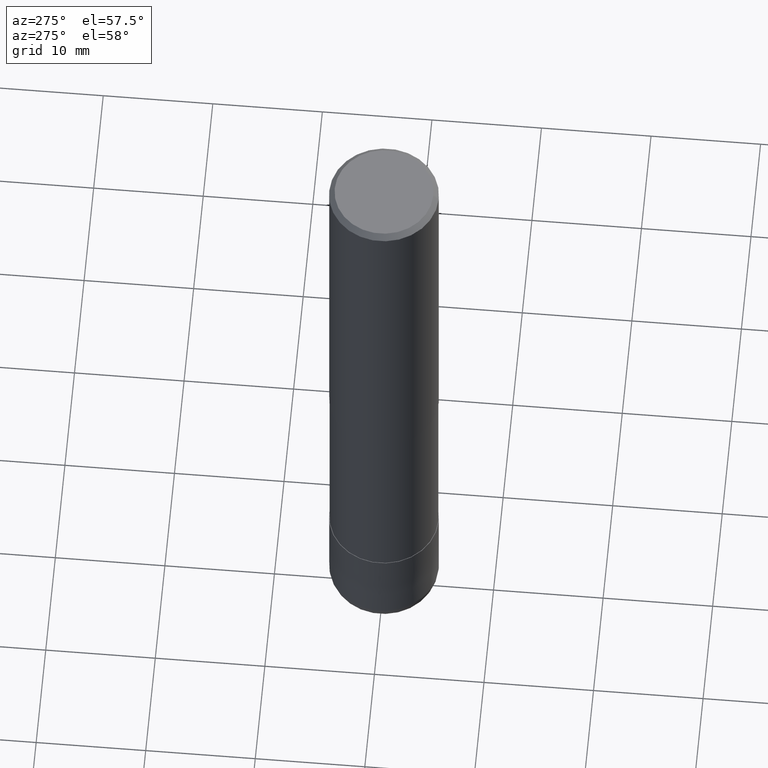
[diagram: clean part render]
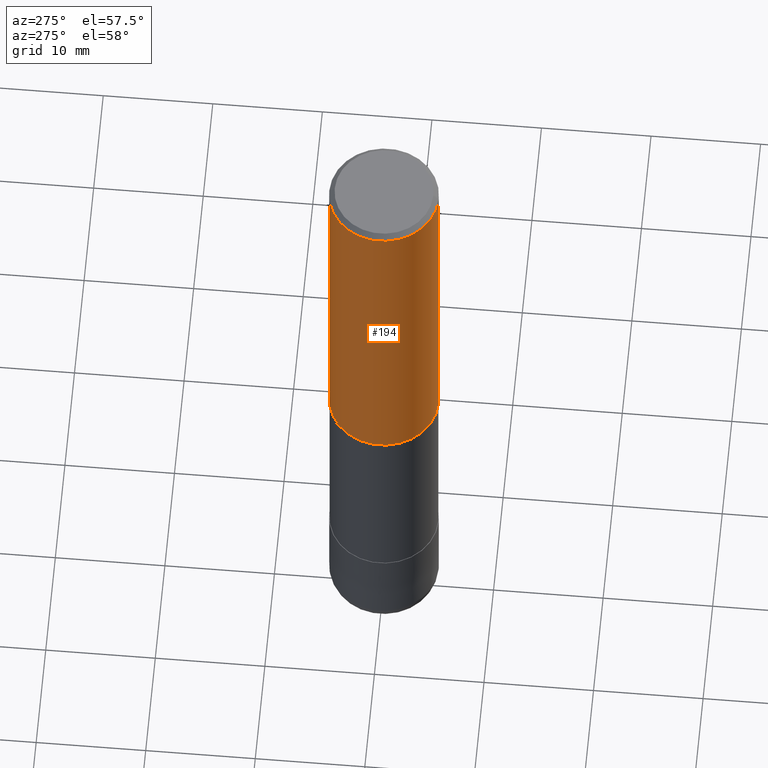
[diagram: same view with one face highlighted and labeled with its STEP entity id]
A machine part, auxiliary view. The second image highlights one B-rep face of the part: STEP entity #194.
In plain terms, the highlighted cylindrical surface (partial cylindrical patch) has radius 5 mm, axis along (-0, -0, 1).
Its self-contained STEP definition (entity closure, byte-faithful):
#128=EDGE_CURVE('',#186,#192,#272,.T.);
#142=EDGE_CURVE('',#188,#162,#288,.T.);
#150=EDGE_CURVE('',#188,#186,#296,.T.);
#162=VERTEX_POINT('',#308);
#182=EDGE_CURVE('',#192,#162,#332,.T.);
#186=VERTEX_POINT('',#337);
#188=VERTEX_POINT('',#339);
#192=VERTEX_POINT('',#343);
#194=ADVANCED_FACE('',(#345),#346,.T.);
#272=CIRCLE('',#427,5.0);
#288=CIRCLE('',#446,5.0);
#296=LINE('',#454,#455);
#308=CARTESIAN_POINT('',(0.0,5.0,-35.0));
#332=LINE('',#503,#504);
#337=CARTESIAN_POINT('',(6.12303176911189E-016,-5.0,-0.5));
#339=CARTESIAN_POINT('',(6.12303176911189E-016,-5.0,-35.0));
#343=CARTESIAN_POINT('',(0.0,5.0,-0.5));
#345=FACE_OUTER_BOUND('',#517,.T.);
#346=CYLINDRICAL_SURFACE('',#518,5.0);
#427=AXIS2_PLACEMENT_3D('',#614,#615,#616);
#446=AXIS2_PLACEMENT_3D('',#632,#633,#634);
#454=CARTESIAN_POINT('',(6.12303176911189E-016,-5.0,-17.75));
#455=VECTOR('',#636,1.0);
#503=CARTESIAN_POINT('',(-6.12303176911189E-016,5.0,-17.75));
#504=VECTOR('',#681,1.0);
#517=EDGE_LOOP('',(#691,#692,#693,#694));
#518=AXIS2_PLACEMENT_3D('',#695,#696,#697);
#614=CARTESIAN_POINT('',(0.0,0.0,-0.5));
#615=DIRECTION('',(0.0,0.0,-1.0));
#616=DIRECTION('',(0.0,1.0,0.0));
#632=CARTESIAN_POINT('',(0.0,0.0,-35.0));
#633=DIRECTION('',(0.0,0.0,-1.0));
#634=DIRECTION('',(0.0,1.0,0.0));
#636=DIRECTION('',(-0.0,-0.0,1.0));
#681=DIRECTION('',(0.0,0.0,-1.0));
#691=ORIENTED_EDGE('',*,*,#182,.T.);
#692=ORIENTED_EDGE('',*,*,#142,.F.);
#693=ORIENTED_EDGE('',*,*,#150,.T.);
#694=ORIENTED_EDGE('',*,*,#128,.T.);
#695=CARTESIAN_POINT('',(0.0,0.0,-17.75));
#696=DIRECTION('',(-0.0,-0.0,1.0));
#697=DIRECTION('',(0.0,1.0,0.0));